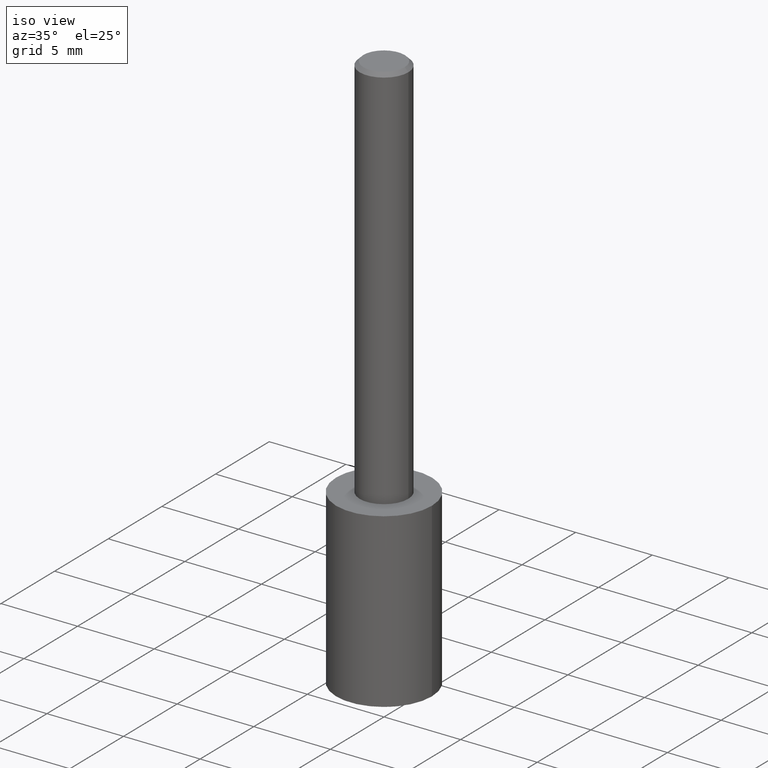
[diagram: clean part render]
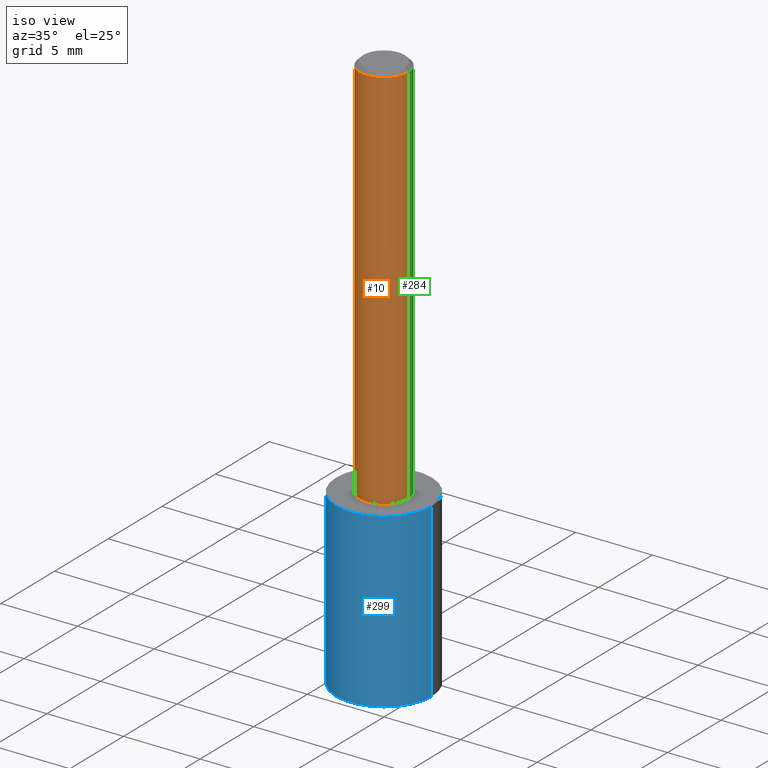
[diagram: same view with three faces highlighted in distinct colors, each labeled with its STEP entity id]
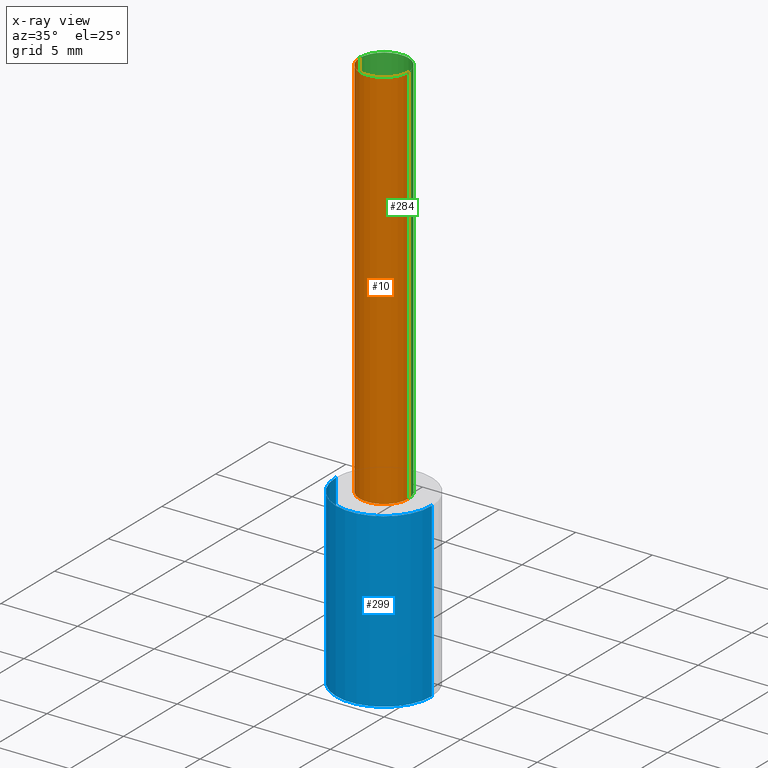
[diagram: x-ray of the same camera — body ghosted, the three highlighted faces saturated]
A machine part, iso view with three faces highlighted in distinct colors.
The next image is the same camera in x-ray (body ghosted, the three faces saturated) — at least one of them is partly hidden behind the body in this view.
Their STEP definitions:

[orange] entity #10 — the highlighted cylindrical surface (edge-blend (fillet) strip) has radius 1.5875 mm, axis along (-0, 0, 1).
#1 = DIRECTION ( 'NONE',  ( -2.445468806185136597E-29, 3.491481338843145583E-15, 1.000000000000000000 ) ) ;
#10 = ADVANCED_FACE ( 'NONE', ( #53 ), #154, .T. ) ;
#14 = CIRCLE ( 'NONE', #108, 0.06250000000000000000 ) ;
#19 = LINE ( 'NONE', #120, #211 ) ;
#27 = VERTEX_POINT ( 'NONE', #304 ) ;
#29 = DIRECTION ( 'NONE',  ( -2.445468806185136597E-29, 3.491481338843145583E-15, 1.000000000000000000 ) ) ;
#30 = CARTESIAN_POINT ( 'NONE',  ( 2.445468806185137438E-29, -3.491481338843146371E-15, -1.000000000000000222 ) ) ;
#31 = DIRECTION ( 'NONE',  ( 1.000000000000000000, -6.982962677686266711E-15, 0.000000000000000000 ) ) ;
#36 = AXIS2_PLACEMENT_3D ( 'NONE', #30, #1, #81 ) ;
#40 = CARTESIAN_POINT ( 'NONE',  ( -0.06250000000000012490, -1.318017778347335489E-15, -1.000000000000000222 ) ) ;
#53 = FACE_OUTER_BOUND ( 'NONE', #253, .T. ) ;
#62 = EDGE_CURVE ( 'NONE', #82, #104, #19, .T. ) ;
#78 = VECTOR ( 'NONE', #190, 39.37007874015748143 ) ;
#81 = DIRECTION ( 'NONE',  ( 1.000000000000000000, -6.982962677686264344E-15, 0.000000000000000000 ) ) ;
#82 = VERTEX_POINT ( 'NONE', #40 ) ;
#86 = EDGE_CURVE ( 'NONE', #104, #27, #14, .T. ) ;
#104 = VERTEX_POINT ( 'NONE', #209 ) ;
#108 = AXIS2_PLACEMENT_3D ( 'NONE', #256, #318, #31 ) ;
#110 = LINE ( 'NONE', #217, #78 ) ;
#119 = VERTEX_POINT ( 'NONE', #279 ) ;
#120 = CARTESIAN_POINT ( 'NONE',  ( -0.06250000000000006939, 4.440892098500631092E-16, -3.074334431409319267E-30 ) ) ;
#154 = CYLINDRICAL_SURFACE ( 'NONE', #293, 0.06250000000000006939 ) ;
#169 = ORIENTED_EDGE ( 'NONE', *, *, #86, .F. ) ;
#190 = DIRECTION ( 'NONE',  ( -2.445468806185136877E-29, 3.491481338843145188E-15, 1.000000000000000000 ) ) ;
#202 = DIRECTION ( 'NONE',  ( -2.445468806185136877E-29, 3.491481338843145188E-15, 1.000000000000000000 ) ) ;
#209 = CARTESIAN_POINT ( 'NONE',  ( -0.06250000000000000000, -1.318017778347336672E-15, -0.009375000000000063838 ) ) ;
#211 = VECTOR ( 'NONE', #202, 39.37007874015748143 ) ;
#217 = CARTESIAN_POINT ( 'NONE',  ( 0.06250000000000006939, -4.364351673553921624E-16, 3.047610484872463374E-30 ) ) ;
#224 = ORIENTED_EDGE ( 'NONE', *, *, #268, .T. ) ;
#226 = EDGE_CURVE ( 'NONE', #119, #27, #110, .T. ) ;
#238 = CARTESIAN_POINT ( 'NONE',  ( 0.000000000000000000, 0.000000000000000000, 0.000000000000000000 ) ) ;
#243 = CIRCLE ( 'NONE', #36, 0.06250000000000012490 ) ;
#253 = EDGE_LOOP ( 'NONE', ( #303, #224, #259, #169 ) ) ;
#256 = CARTESIAN_POINT ( 'NONE',  ( 2.292627005798581499E-31, -3.273263755165471417E-17, -0.009375000000000063838 ) ) ;
#259 = ORIENTED_EDGE ( 'NONE', *, *, #226, .T. ) ;
#268 = EDGE_CURVE ( 'NONE', #82, #119, #243, .T. ) ;
#279 = CARTESIAN_POINT ( 'NONE',  ( 0.06250000000000012490, -3.927916506198539224E-15, -1.000000000000000222 ) ) ;
#293 = AXIS2_PLACEMENT_3D ( 'NONE', #238, #29, #335 ) ;
#303 = ORIENTED_EDGE ( 'NONE', *, *, #62, .F. ) ;
#304 = CARTESIAN_POINT ( 'NONE',  ( 0.06250000000000000000, -4.691678049070464390E-16, -0.009375000000000063838 ) ) ;
#318 = DIRECTION ( 'NONE',  ( -2.445468806185136597E-29, 3.491481338843145583E-15, 1.000000000000000000 ) ) ;
#335 = DIRECTION ( 'NONE',  ( 1.000000000000000000, -6.982962677686266711E-15, 4.876176775795935793E-29 ) ) ;

[blue] entity #299 — the highlighted cylindrical surface (partial cylindrical patch) has radius 3.1242 mm, axis along (-0, 0, 1).
#4 = DIRECTION ( 'NONE',  ( -2.445468806185136877E-29, 3.491481338843145188E-15, 1.000000000000000000 ) ) ;
#6 = CIRCLE ( 'NONE', #133, 0.1229999999999999982 ) ;
#15 = DIRECTION ( 'NONE',  ( 1.000000000000000000, -6.982962677686265922E-15, 0.000000000000000000 ) ) ;
#24 = ORIENTED_EDGE ( 'NONE', *, *, #212, .T. ) ;
#35 = CARTESIAN_POINT ( 'NONE',  ( -0.1229999999999999566, -4.162997591427033247E-15, -1.442644158046935354 ) ) ;
#44 = EDGE_LOOP ( 'NONE', ( #321, #142, #24, #167 ) ) ;
#59 = LINE ( 'NONE', #159, #233 ) ;
#66 = CARTESIAN_POINT ( 'NONE',  ( 2.445468806185136877E-29, -3.491481338843145977E-15, -1.000000000000000222 ) ) ;
#75 = VERTEX_POINT ( 'NONE', #163 ) ;
#100 = DIRECTION ( 'NONE',  ( -2.445468806185136597E-29, 3.491481338843145583E-15, 1.000000000000000000 ) ) ;
#107 = VERTEX_POINT ( 'NONE', #314 ) ;
#132 = DIRECTION ( 'NONE',  ( -2.445468806185136597E-29, 3.491481338843145583E-15, 1.000000000000000000 ) ) ;
#133 = AXIS2_PLACEMENT_3D ( 'NONE', #66, #251, #15 ) ;
#142 = ORIENTED_EDGE ( 'NONE', *, *, #297, .T. ) ;
#158 = LINE ( 'NONE', #241, #283 ) ;
#159 = CARTESIAN_POINT ( 'NONE',  ( -0.1229999999999999982, -2.617513773858223550E-15, -1.000000000000000222 ) ) ;
#163 = CARTESIAN_POINT ( 'NONE',  ( -0.1229999999999999982, -3.390255682642628004E-15, -1.000000000000000222 ) ) ;
#167 = ORIENTED_EDGE ( 'NONE', *, *, #192, .F. ) ;
#184 = DIRECTION ( 'NONE',  ( 1.000000000000000000, -6.982962677686269866E-15, 0.000000000000000000 ) ) ;
#187 = CARTESIAN_POINT ( 'NONE',  ( 2.445468806185137438E-29, -3.491481338843146371E-15, -1.000000000000000222 ) ) ;
#188 = AXIS2_PLACEMENT_3D ( 'NONE', #213, #100, #184 ) ;
#189 = FACE_OUTER_BOUND ( 'NONE', #44, .T. ) ;
#192 = EDGE_CURVE ( 'NONE', #75, #331, #6, .T. ) ;
#198 = VERTEX_POINT ( 'NONE', #35 ) ;
#207 = CARTESIAN_POINT ( 'NONE',  ( 0.1229999999999999982, -4.350385748198556498E-15, -1.000000000000000222 ) ) ;
#210 = DIRECTION ( 'NONE',  ( 1.000000000000000000, -6.982962677686265922E-15, 0.000000000000000000 ) ) ;
#212 = EDGE_CURVE ( 'NONE', #107, #331, #158, .T. ) ;
#213 = CARTESIAN_POINT ( 'NONE',  ( 3.527941286929000820E-29, -5.036965156411956463E-15, -1.442644158046935354 ) ) ;
#230 = EDGE_CURVE ( 'NONE', #198, #75, #59, .T. ) ;
#233 = VECTOR ( 'NONE', #239, 39.37007874015748143 ) ;
#239 = DIRECTION ( 'NONE',  ( -2.445468806185136877E-29, 3.491481338843145188E-15, 1.000000000000000000 ) ) ;
#241 = CARTESIAN_POINT ( 'NONE',  ( 0.1229999999999999982, -4.350385748198557287E-15, -1.000000000000000222 ) ) ;
#251 = DIRECTION ( 'NONE',  ( -2.445468806185136597E-29, 3.491481338843145583E-15, 1.000000000000000000 ) ) ;
#283 = VECTOR ( 'NONE', #4, 39.37007874015748143 ) ;
#296 = AXIS2_PLACEMENT_3D ( 'NONE', #187, #132, #210 ) ;
#297 = EDGE_CURVE ( 'NONE', #198, #107, #326, .T. ) ;
#299 = ADVANCED_FACE ( 'NONE', ( #189 ), #317, .T. ) ;
#314 = CARTESIAN_POINT ( 'NONE',  ( 0.1229999999999999566, -5.895869565767366984E-15, -1.442644158046935354 ) ) ;
#317 = CYLINDRICAL_SURFACE ( 'NONE', #296, 0.1229999999999999982 ) ;
#321 = ORIENTED_EDGE ( 'NONE', *, *, #230, .F. ) ;
#326 = CIRCLE ( 'NONE', #188, 0.1229999999999999982 ) ;
#331 = VERTEX_POINT ( 'NONE', #207 ) ;

[green] entity #284 — the highlighted cylindrical surface (edge-blend (fillet) strip) has radius 1.5875 mm, axis along (-0, 0, 1).
#8 = DIRECTION ( 'NONE',  ( -2.445468806185136597E-29, 3.491481338843145583E-15, 1.000000000000000000 ) ) ;
#19 = LINE ( 'NONE', #120, #211 ) ;
#27 = VERTEX_POINT ( 'NONE', #304 ) ;
#40 = CARTESIAN_POINT ( 'NONE',  ( -0.06250000000000012490, -1.318017778347335489E-15, -1.000000000000000222 ) ) ;
#62 = EDGE_CURVE ( 'NONE', #82, #104, #19, .T. ) ;
#64 = DIRECTION ( 'NONE',  ( -2.445468806185136597E-29, 3.491481338843145583E-15, 1.000000000000000000 ) ) ;
#67 = ORIENTED_EDGE ( 'NONE', *, *, #262, .F. ) ;
#68 = CIRCLE ( 'NONE', #160, 0.06250000000000012490 ) ;
#78 = VECTOR ( 'NONE', #190, 39.37007874015748143 ) ;
#80 = EDGE_CURVE ( 'NONE', #119, #82, #68, .T. ) ;
#82 = VERTEX_POINT ( 'NONE', #40 ) ;
#83 = DIRECTION ( 'NONE',  ( -2.445468806185136597E-29, 3.491481338843145583E-15, 1.000000000000000000 ) ) ;
#88 = DIRECTION ( 'NONE',  ( 1.000000000000000000, -6.982962677686264344E-15, 0.000000000000000000 ) ) ;
#92 = ORIENTED_EDGE ( 'NONE', *, *, #226, .F. ) ;
#97 = ORIENTED_EDGE ( 'NONE', *, *, #80, .T. ) ;
#104 = VERTEX_POINT ( 'NONE', #209 ) ;
#106 = FACE_OUTER_BOUND ( 'NONE', #174, .T. ) ;
#110 = LINE ( 'NONE', #217, #78 ) ;
#119 = VERTEX_POINT ( 'NONE', #279 ) ;
#120 = CARTESIAN_POINT ( 'NONE',  ( -0.06250000000000006939, 4.440892098500631092E-16, -3.074334431409319267E-30 ) ) ;
#152 = ORIENTED_EDGE ( 'NONE', *, *, #62, .T. ) ;
#156 = CYLINDRICAL_SURFACE ( 'NONE', #267, 0.06250000000000006939 ) ;
#160 = AXIS2_PLACEMENT_3D ( 'NONE', #272, #8, #88 ) ;
#174 = EDGE_LOOP ( 'NONE', ( #97, #152, #67, #92 ) ) ;
#190 = DIRECTION ( 'NONE',  ( -2.445468806185136877E-29, 3.491481338843145188E-15, 1.000000000000000000 ) ) ;
#202 = DIRECTION ( 'NONE',  ( -2.445468806185136877E-29, 3.491481338843145188E-15, 1.000000000000000000 ) ) ;
#209 = CARTESIAN_POINT ( 'NONE',  ( -0.06250000000000000000, -1.318017778347336672E-15, -0.009375000000000063838 ) ) ;
#211 = VECTOR ( 'NONE', #202, 39.37007874015748143 ) ;
#215 = DIRECTION ( 'NONE',  ( 1.000000000000000000, -6.982962677686266711E-15, 4.876176775795935793E-29 ) ) ;
#216 = CIRCLE ( 'NONE', #252, 0.06250000000000000000 ) ;
#217 = CARTESIAN_POINT ( 'NONE',  ( 0.06250000000000006939, -4.364351673553921624E-16, 3.047610484872463374E-30 ) ) ;
#226 = EDGE_CURVE ( 'NONE', #119, #27, #110, .T. ) ;
#235 = CARTESIAN_POINT ( 'NONE',  ( 0.000000000000000000, 0.000000000000000000, 0.000000000000000000 ) ) ;
#248 = CARTESIAN_POINT ( 'NONE',  ( 2.292627005798581499E-31, -3.273263755165471417E-17, -0.009375000000000063838 ) ) ;
#252 = AXIS2_PLACEMENT_3D ( 'NONE', #248, #64, #266 ) ;
#262 = EDGE_CURVE ( 'NONE', #27, #104, #216, .T. ) ;
#266 = DIRECTION ( 'NONE',  ( 1.000000000000000000, -6.982962677686266711E-15, 0.000000000000000000 ) ) ;
#267 = AXIS2_PLACEMENT_3D ( 'NONE', #235, #83, #215 ) ;
#272 = CARTESIAN_POINT ( 'NONE',  ( 2.445468806185137438E-29, -3.491481338843146371E-15, -1.000000000000000222 ) ) ;
#279 = CARTESIAN_POINT ( 'NONE',  ( 0.06250000000000012490, -3.927916506198539224E-15, -1.000000000000000222 ) ) ;
#284 = ADVANCED_FACE ( 'NONE', ( #106 ), #156, .T. ) ;
#304 = CARTESIAN_POINT ( 'NONE',  ( 0.06250000000000000000, -4.691678049070464390E-16, -0.009375000000000063838 ) ) ;